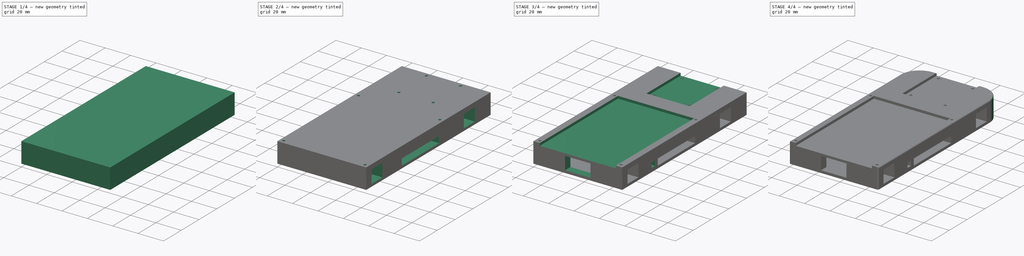
[diagram: build sequence overview — one tinted view per stage of 4, left to right]
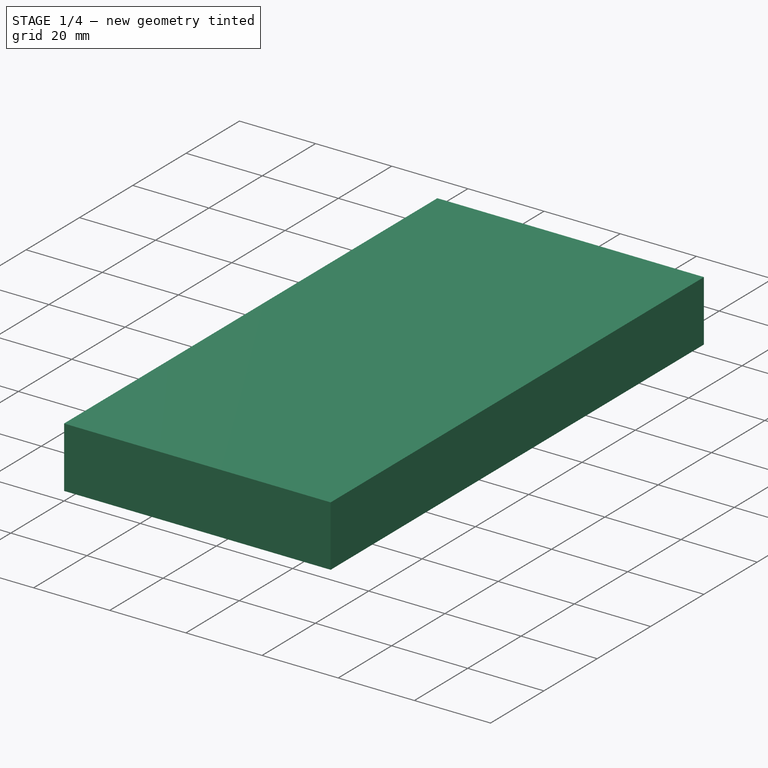
[diagram: stage 1 of 4 — iso view after this stage's code; geometry added in this stage tinted green]
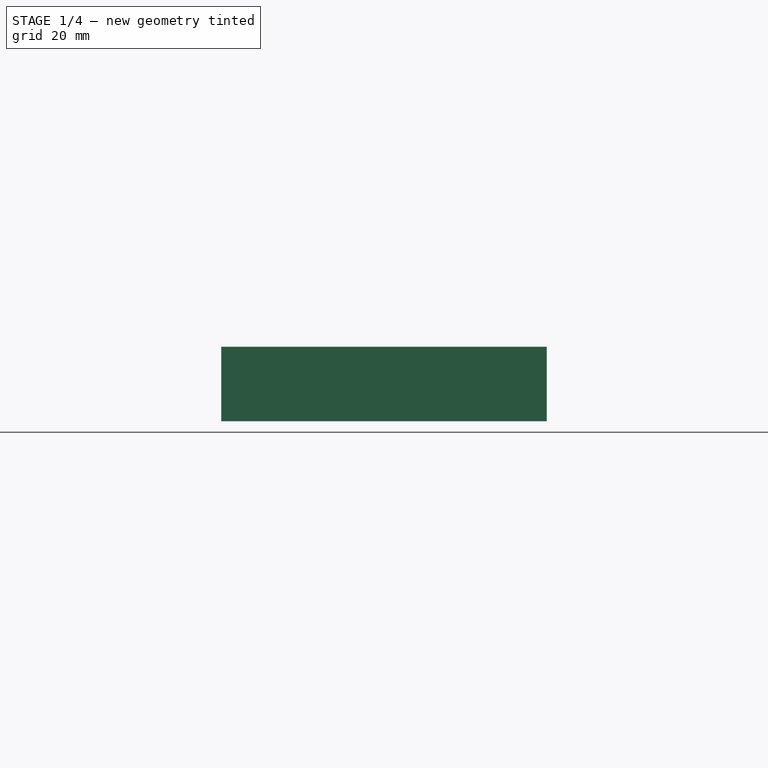
[diagram: stage 1 of 4 — front view after this stage's code; geometry added in this stage tinted green]
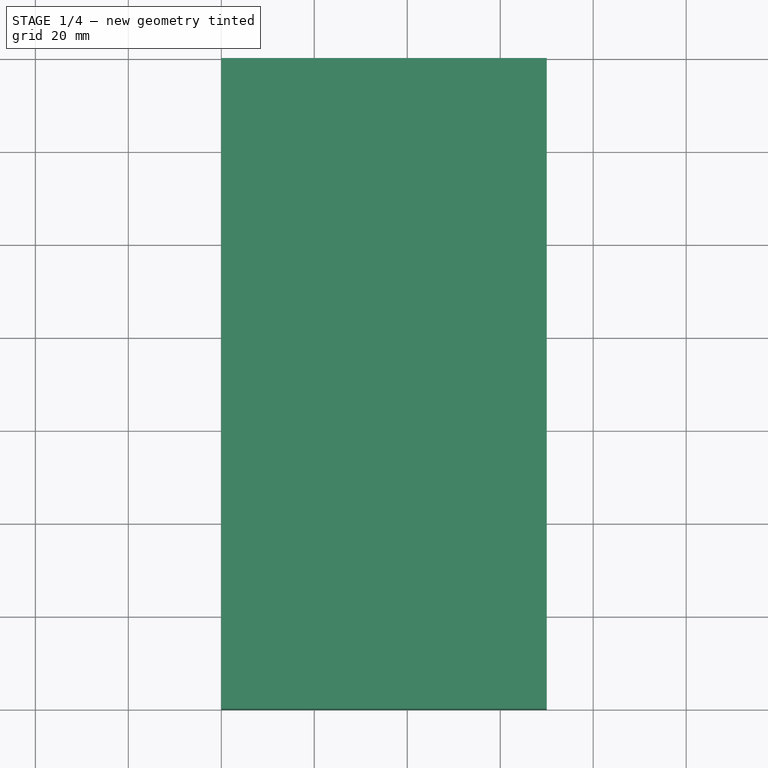
[diagram: stage 1 of 4 — top view after this stage's code; geometry added in this stage tinted green]
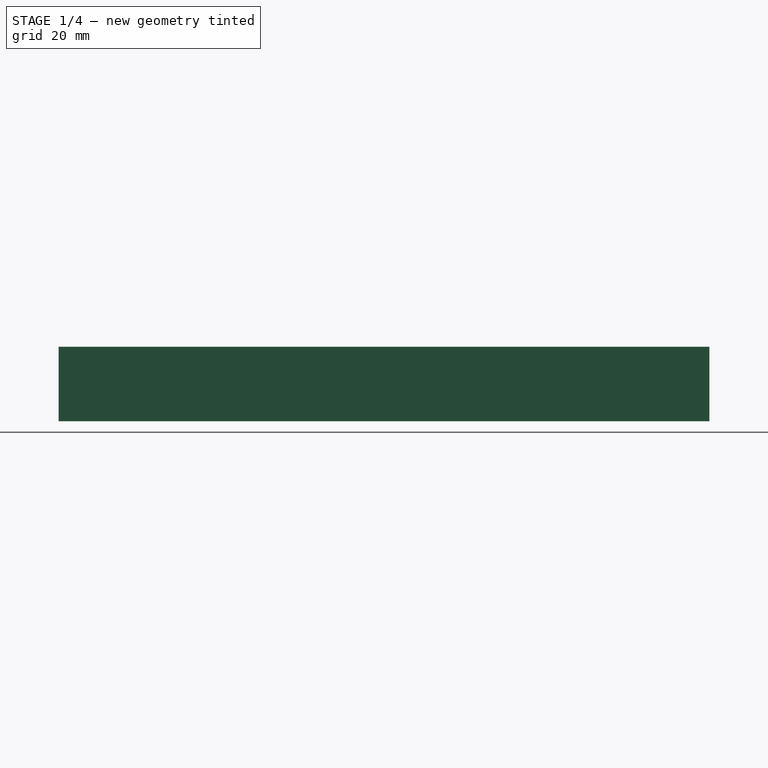
[diagram: stage 1 of 4 — right view after this stage's code; geometry added in this stage tinted green]
FCSTD DOCUMENT  (FreeCAD 0.17R13541 (Git))
Label: NeuroBot
License: All rights reserved
LicenseURL: http://en.wikipedia.org/wiki/All_rights_reserved
objects: Sketcher::SketchObject×5, PartDesign::Pocket×5, PartDesign::Fillet×2, Part::Box×1, PartDesign::FeatureBase×1, PartDesign::Body×1
note: 20 computed .brp shape members not serialized (recipe doc carries the construction recipe); baked Part::Feature solids carry a one-line shape summary decoded from their .brp

FEATURE [Part::Box] Box  label="Kocka"
  AttacherType = Attacher::AttachEngine3D
  Height = 16
  Length = 70
  Width = 140
FEATURE [PartDesign::FeatureBase] BaseFeature
  BaseFeature = -> Box
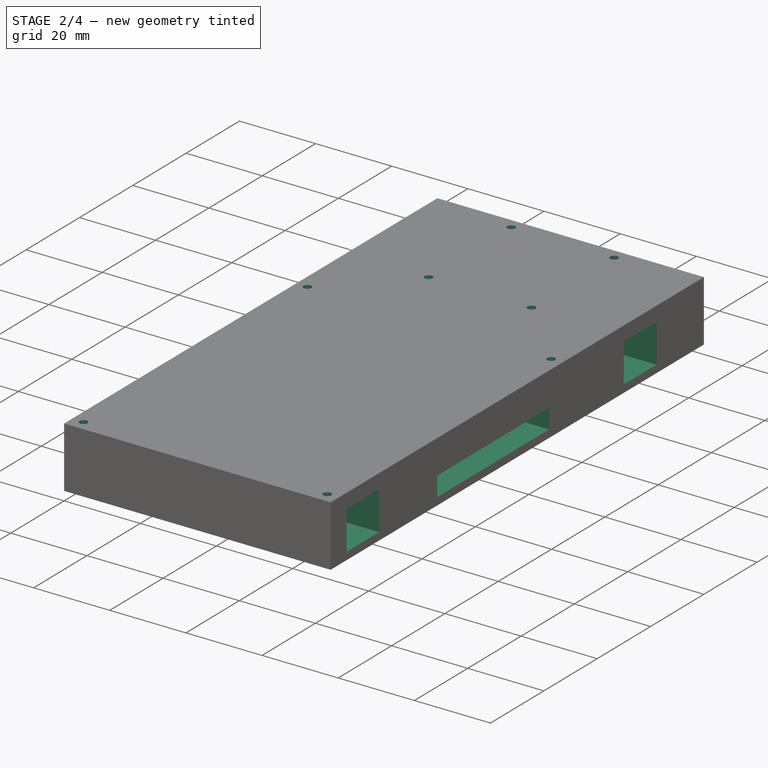
[diagram: stage 2 of 4 — iso view after this stage's code; geometry added in this stage tinted green]
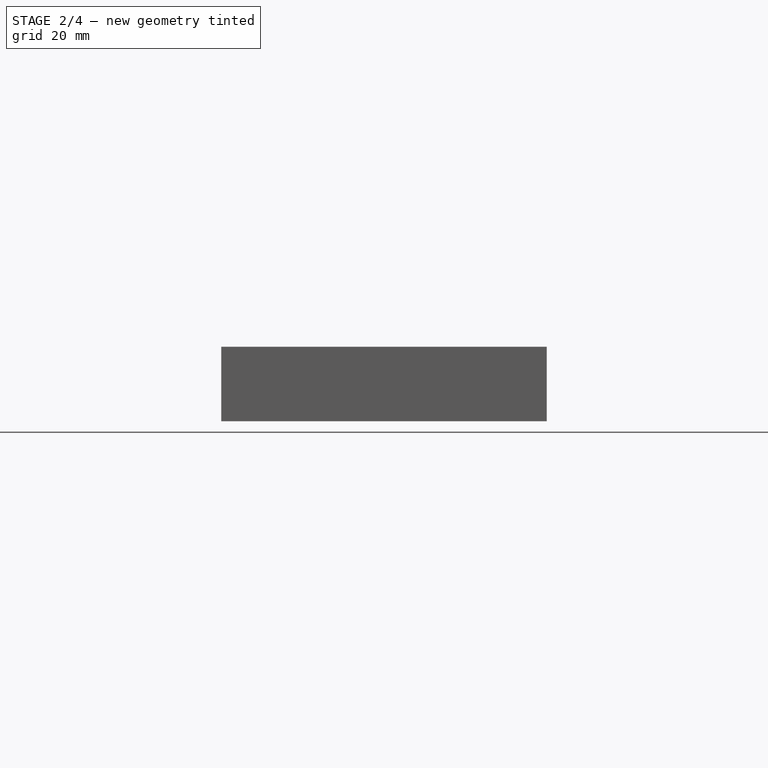
[diagram: stage 2 of 4 — front view after this stage's code; geometry added in this stage tinted green]
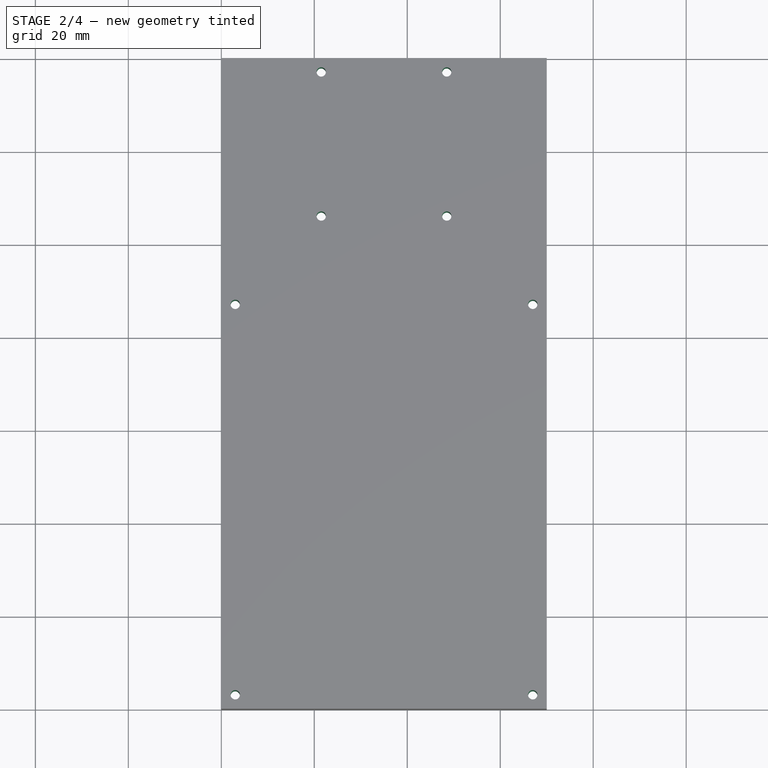
[diagram: stage 2 of 4 — top view after this stage's code; geometry added in this stage tinted green]
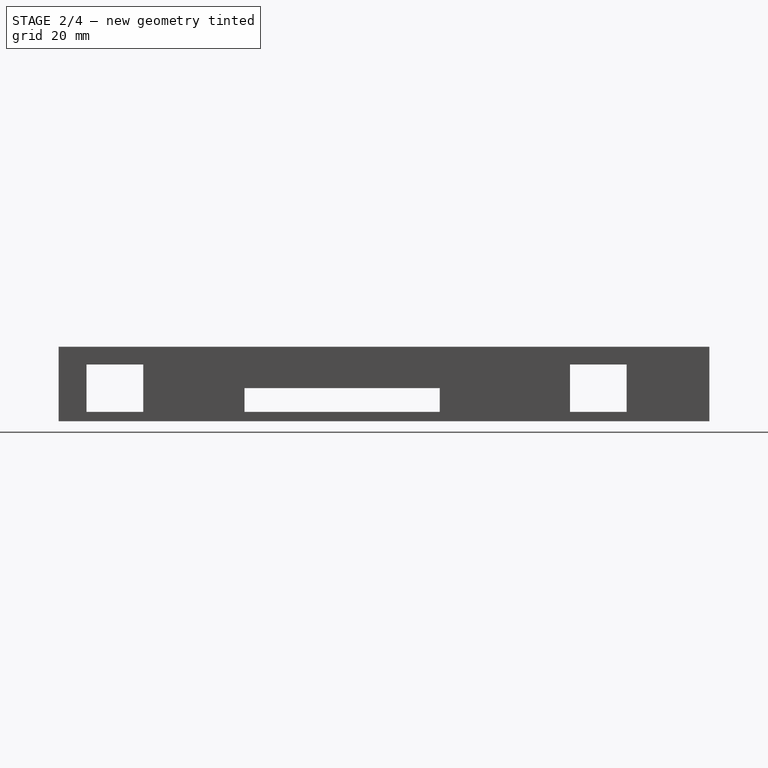
[diagram: stage 2 of 4 — right view after this stage's code; geometry added in this stage tinted green]
FEATURE [Sketcher::SketchObject] Sketch
  MapMode = 5
  Placement = pos=(0,0,16) rot=(0,0,1;0rad)
  Support = -> [BaseFeature]
  sketch-geometry (8):
    g0: Circle CenterX=3 CenterY=3 CenterZ=0 NormalX=0 NormalY=0 NormalZ=1 AngleXU=0 Radius=1
    g1: Circle CenterX=67 CenterY=3 CenterZ=0 NormalX=0 NormalY=0 NormalZ=1 AngleXU=0 Radius=1
    g2: Circle CenterX=3 CenterY=87 CenterZ=0 NormalX=0 NormalY=0 NormalZ=1 AngleXU=0 Radius=1
    g3: Circle CenterX=67 CenterY=87 CenterZ=0 NormalX=0 NormalY=0 NormalZ=1 AngleXU=0 Radius=1
    g4: Circle CenterX=21.5 CenterY=137 CenterZ=0 NormalX=0 NormalY=0 NormalZ=1 AngleXU=0 Radius=1
    g5: Circle CenterX=48.5 CenterY=137 CenterZ=0 NormalX=0 NormalY=0 NormalZ=1 AngleXU=0 Radius=1
    g6: Circle CenterX=21.5 CenterY=106 CenterZ=0 NormalX=0 NormalY=0 NormalZ=1 AngleXU=0 Radius=1
    g7: Circle CenterX=48.5 CenterY=106 CenterZ=0 NormalX=0 NormalY=0 NormalZ=1 AngleXU=0 Radius=1
  constraints (24):
    c: Radius(g0) = 1
    c: DistanceY(g-1,g0) = 3
    c: DistanceX(g-1,g0) = 3
    c: Radius(g1) = 1
    c: DistanceY(g-1,g1) = 3
    c: DistanceX(g0,g1) = 64
    c: Radius(g3) = 1
    c: Radius(g2) = 1
    c: DistanceX(g2,g3) = 64
    c: DistanceX(g-1,g2) = 3
    c: DistanceY(g0,g2) = 84
    c: DistanceY(g1,g3) = 84
    c: Radius(g4) = 1
    c: Radius(g5) = 1
    c: Radius(g7) = 1
    c: Radius(g6) = 1
    c: DistanceX(g-1,g4) = 21.5
    c: DistanceX(g4,g5) = 27
    c: DistanceX(g6,g7) = 27
    c: DistanceX(g4,g7) = 27
    c: DistanceY(g7,g5) = 31
    c: DistanceY(g6,g4) = 31
    c: DistanceY(g-1,g4) = 137
    c: DistanceY(g-1,g5) = 137
FEATURE [PartDesign::Pocket] Pocket
  BaseFeature = -> BaseFeature
  Length = 20
  Length2 = 100
  Profile = -> Sketch
  Type = 0
FEATURE [Sketcher::SketchObject] Sketch001
  MapMode = 5
  Placement = pos=(0,0,0) rot=(0.57735,0.57735,0.57735;2.0944rad)
  Support = -> [YZ_Plane]
  sketch-geometry (12):
    g0: LineSegment StartX=6 StartY=12.2 StartZ=0 EndX=18.2 EndY=12.2 EndZ=0
    g1: LineSegment StartX=18.2 StartY=12.2 StartZ=0 EndX=18.2 EndY=2 EndZ=0
    g2: LineSegment StartX=18.2 StartY=2 StartZ=0 EndX=6 EndY=2 EndZ=0
    g3: LineSegment StartX=6 StartY=2 StartZ=0 EndX=6 EndY=12.2 EndZ=0
    g4: LineSegment StartX=110 StartY=12.2 StartZ=0 EndX=122.2 EndY=12.2 EndZ=0
    g5: LineSegment StartX=122.2 StartY=12.2 StartZ=0 EndX=122.2 EndY=2 EndZ=0
    g6: LineSegment StartX=122.2 StartY=2 StartZ=0 EndX=110 EndY=2 EndZ=0
    g7: LineSegment StartX=110 StartY=2 StartZ=0 EndX=110 EndY=12.2 EndZ=0
    g8: LineSegment StartX=40 StartY=7.1 StartZ=0 EndX=82 EndY=7.1 EndZ=0
    g9: LineSegment StartX=82 StartY=7.1 StartZ=0 EndX=82 EndY=2 EndZ=0
    g10: LineSegment StartX=82 StartY=2 StartZ=0 EndX=40 EndY=2 EndZ=0
    g11: LineSegment StartX=40 StartY=2 StartZ=0 EndX=40 EndY=7.1 EndZ=0
  constraints (36):
    c: Coincident(g0,g1)
    c: Coincident(g1,g2)
    c: Coincident(g2,g3)
    c: Coincident(g3,g0)
    c: Horizontal(g0)
    c: Horizontal(g2)
    c: Vertical(g1)
    c: Vertical(g3)
    c: Coincident(g4,g5)
    c: Coincident(g5,g6)
    c: Coincident(g6,g7)
    c: Coincident(g7,g4)
    c: Horizontal(g4)
    c: Horizontal(g6)
    c: Vertical(g5)
    c: Vertical(g7)
    c: DistanceY(g1,g0) = 10.2
    c: DistanceY(g5,g4) = 10.2
    c: DistanceX(g4,g4) = 12.2
    c: DistanceX(g0,g0) = 12.2
    c: DistanceX(g-1,g0) = 6
    c: DistanceX(g-1,g6) = 110
    c: DistanceY(g-1,g6) = 2
    c: DistanceY(g-1,g2) = 2
    c: Coincident(g8,g9)
    c: Coincident(g9,g10)
    c: Coincident(g10,g11)
    c: Coincident(g11,g8)
    c: Horizontal(g8)
    c: Horizontal(g10)
    c: Vertical(g9)
    c: Vertical(g11)
    c: DistanceX(g8,g8) = 42
    c: DistanceY(g9,g8) = 5.1
    c: DistanceX(g-1,g10) = 40
    c: DistanceY(g-1,g10) = 2
FEATURE [PartDesign::Pocket] Pocket001
  BaseFeature = -> Pocket
  Length = 75
  Length2 = 100
  Profile = -> Sketch001
  Reversed = true
  Type = 0
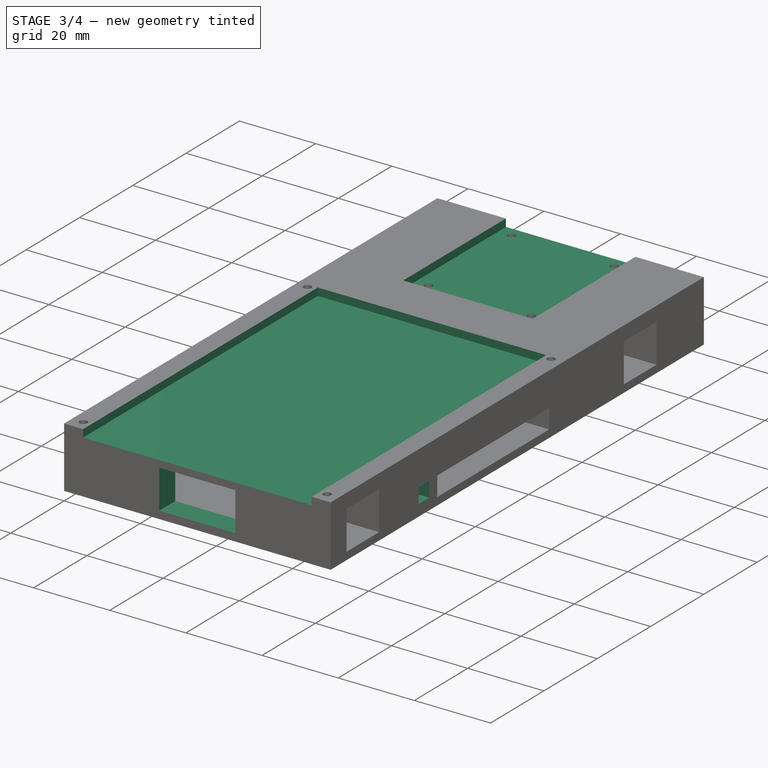
[diagram: stage 3 of 4 — iso view after this stage's code; geometry added in this stage tinted green]
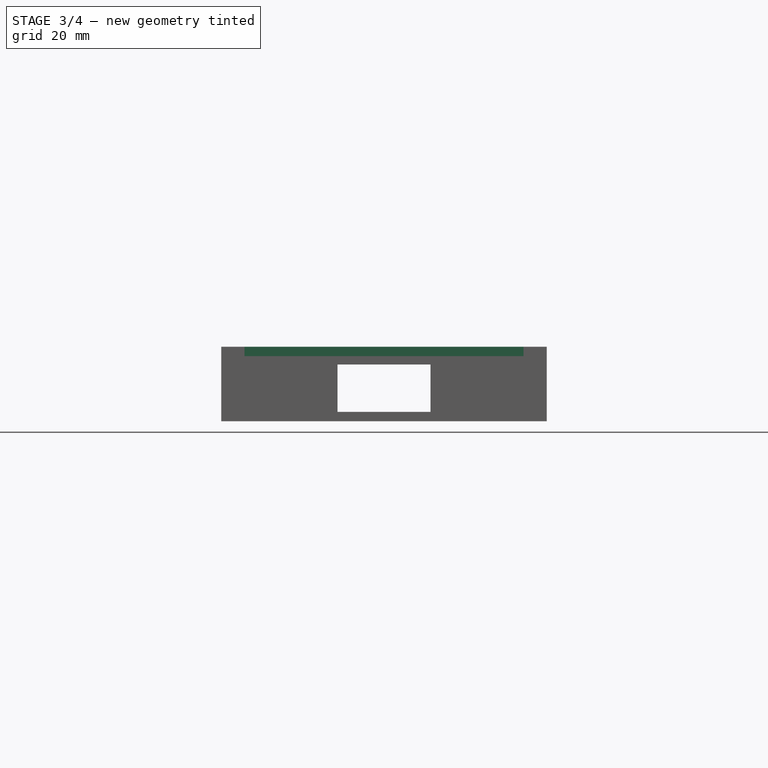
[diagram: stage 3 of 4 — front view after this stage's code; geometry added in this stage tinted green]
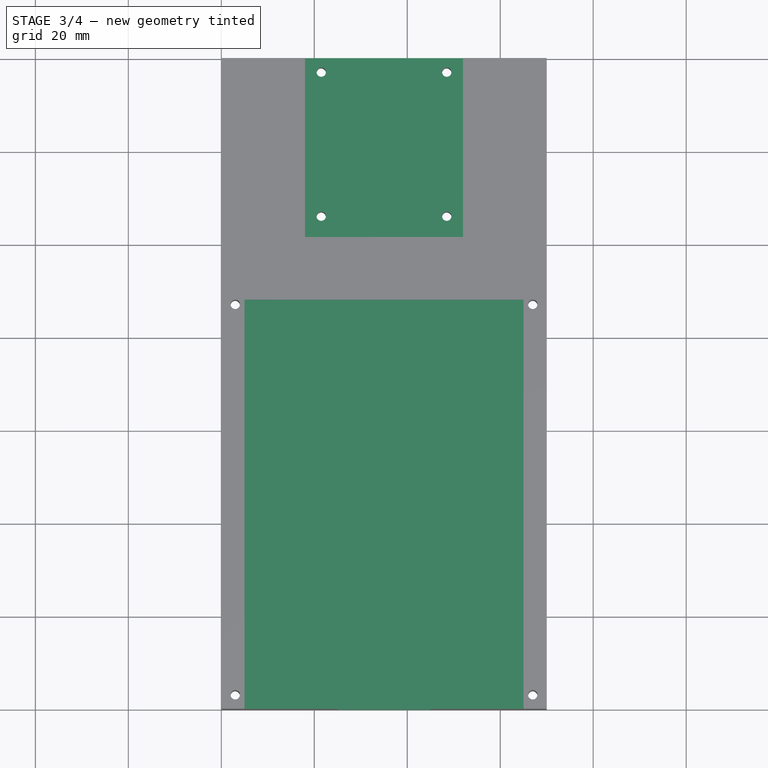
[diagram: stage 3 of 4 — top view after this stage's code; geometry added in this stage tinted green]
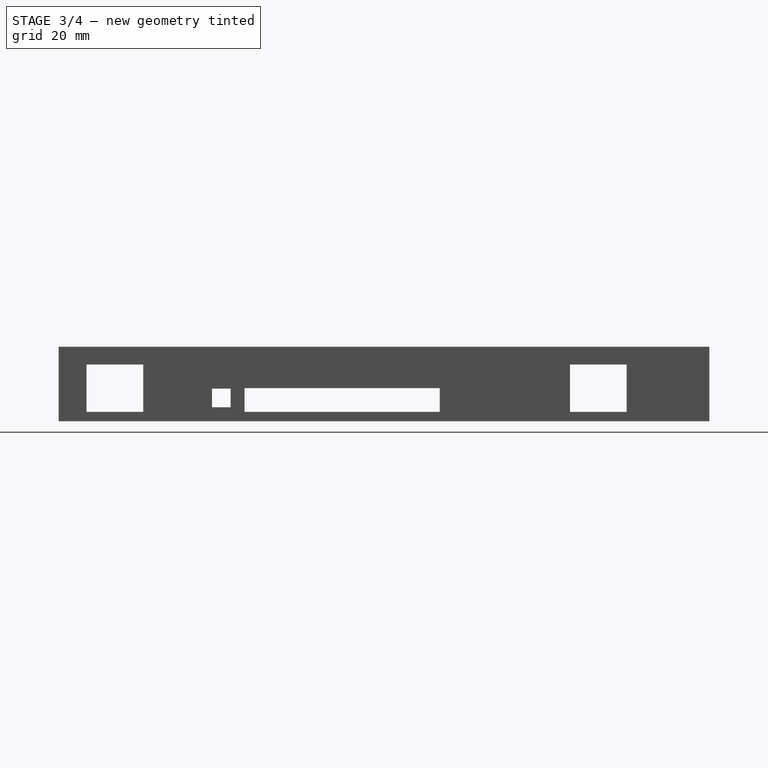
[diagram: stage 3 of 4 — right view after this stage's code; geometry added in this stage tinted green]
FEATURE [Sketcher::SketchObject] Sketch002
  MapMode = 5
  Placement = pos=(0,0,0) rot=(1,0,0;1.5708rad)
  Support = -> [XZ_Plane]
  sketch-geometry (4):
    g0: LineSegment StartX=25 StartY=12.2 StartZ=0 EndX=45 EndY=12.2 EndZ=0
    g1: LineSegment StartX=45 StartY=12.2 StartZ=0 EndX=45 EndY=2 EndZ=0
    g2: LineSegment StartX=45 StartY=2 StartZ=0 EndX=25 EndY=2 EndZ=0
    g3: LineSegment StartX=25 StartY=2 StartZ=0 EndX=25 EndY=12.2 EndZ=0
  constraints (12):
    c: Coincident(g0,g1)
    c: Coincident(g1,g2)
    c: Coincident(g2,g3)
    c: Coincident(g3,g0)
    c: Horizontal(g0)
    c: Horizontal(g2)
    c: Vertical(g1)
    c: Vertical(g3)
    c: DistanceX(g0,g0) = 20
    c: DistanceY(g2,g0) = 10.2
    c: DistanceY(g-1,g2) = 2
    c: DistanceX(g-1,g0) = 25
FEATURE [PartDesign::Pocket] Pocket002
  BaseFeature = -> Pocket001
  Length = 140
  Length2 = 100
  Profile = -> Sketch002
  Type = 0
FEATURE [Sketcher::SketchObject] Sketch003
  MapMode = 5
  Placement = pos=(0,0,16) rot=(0,0,1;0rad)
  Support = -> [Pocket002]
  sketch-geometry (8):
    g0: LineSegment StartX=18 StartY=140 StartZ=0 EndX=52 EndY=140 EndZ=0
    g1: LineSegment StartX=52 StartY=140 StartZ=0 EndX=52 EndY=101.5 EndZ=0
    g2: LineSegment StartX=52 StartY=101.5 StartZ=0 EndX=18 EndY=101.5 EndZ=0
    g3: LineSegment StartX=18 StartY=101.5 StartZ=0 EndX=18 EndY=140 EndZ=0
    g4: LineSegment StartX=5 StartY=88 StartZ=0 EndX=65 EndY=88 EndZ=0
    g5: LineSegment StartX=65 StartY=88 StartZ=0 EndX=65 EndY=-2 EndZ=0
    g6: LineSegment StartX=65 StartY=-2 StartZ=0 EndX=5 EndY=-2 EndZ=0
    g7: LineSegment StartX=5 StartY=-2 StartZ=0 EndX=5 EndY=88 EndZ=0
  constraints (24):
    c: Coincident(g0,g1)
    c: Coincident(g1,g2)
    c: Coincident(g2,g3)
    c: Coincident(g3,g0)
    c: Horizontal(g0)
    c: Horizontal(g2)
    c: Vertical(g1)
    c: Vertical(g3)
    c: DistanceX(g0,g0) = 34
    c: DistanceY(g1,g0) = 38.5
    c: DistanceY(g-1,g0) = 140
    c: DistanceX(g-1,g0) = 18
    c: Coincident(g4,g5)
    c: Coincident(g5,g6)
    c: Coincident(g6,g7)
    c: Coincident(g7,g4)
    c: Horizontal(g4)
    c: Horizontal(g6)
    c: Vertical(g5)
    c: Vertical(g7)
    c: DistanceX(g4,g4) = 60
    c: DistanceY(g5,g4) = 90
    c: DistanceX(g-1,g4) = 5
    c: DistanceY(g-1,g4) = 88
FEATURE [PartDesign::Pocket] Pocket003
  BaseFeature = -> Pocket002
  Length = 2
  Length2 = 100
  Profile = -> Sketch003
  Type = 0
FEATURE [Sketcher::SketchObject] Sketch004
  MapMode = 5
  Placement = pos=(70,0,0) rot=(0.57735,0.57735,0.57735;2.0944rad)
  Support = -> [Pocket003]
  sketch-geometry (4):
    g0: LineSegment StartX=33 StartY=7 StartZ=0 EndX=37 EndY=7 EndZ=0
    g1: LineSegment StartX=37 StartY=7 StartZ=0 EndX=37 EndY=3 EndZ=0
    g2: LineSegment StartX=37 StartY=3 StartZ=0 EndX=33 EndY=3 EndZ=0
    g3: LineSegment StartX=33 StartY=3 StartZ=0 EndX=33 EndY=7 EndZ=0
  constraints (12):
    c: Coincident(g0,g1)
    c: Coincident(g1,g2)
    c: Coincident(g2,g3)
    c: Coincident(g3,g0)
    c: Horizontal(g0)
    c: Horizontal(g2)
    c: Vertical(g1)
    c: Vertical(g3)
    c: DistanceX(g0,g0) = 4
    c: DistanceY(g1,g1) = 4
    c: DistanceY(g-1,g2) = 3
    c: DistanceX(g-1,g2) = 33
FEATURE [PartDesign::Pocket] Pocket004
  BaseFeature = -> Pocket003
  Length = 80
  Length2 = 100
  Profile = -> Sketch004
  Type = 0
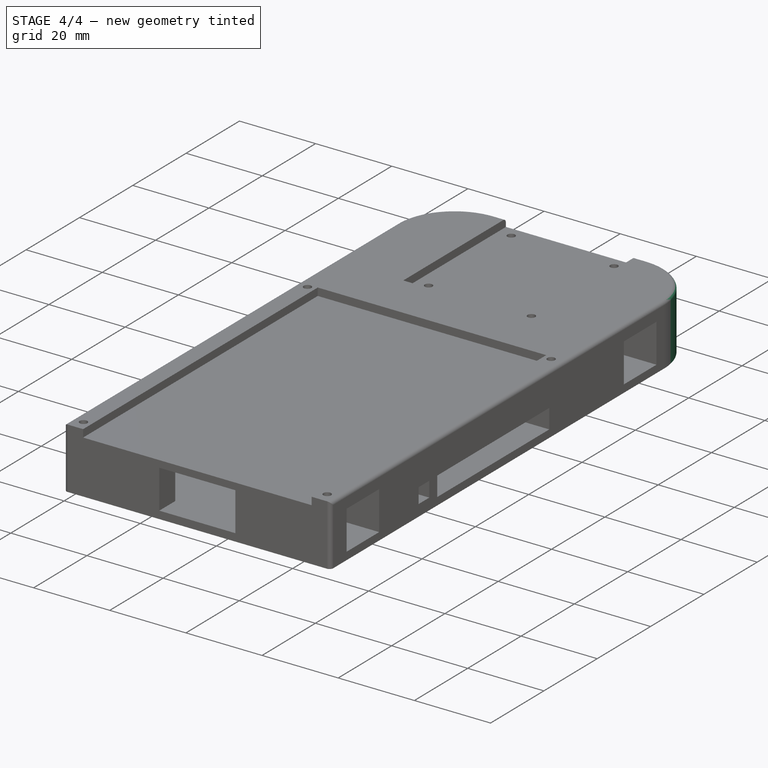
[diagram: stage 4 of 4 — iso view after this stage's code; geometry added in this stage tinted green]
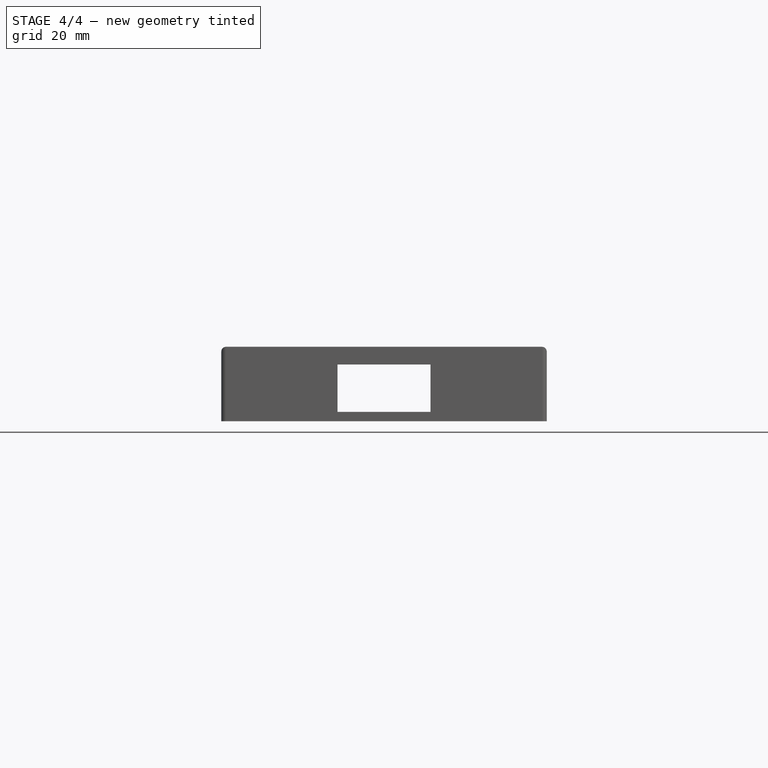
[diagram: stage 4 of 4 — front view after this stage's code; geometry added in this stage tinted green]
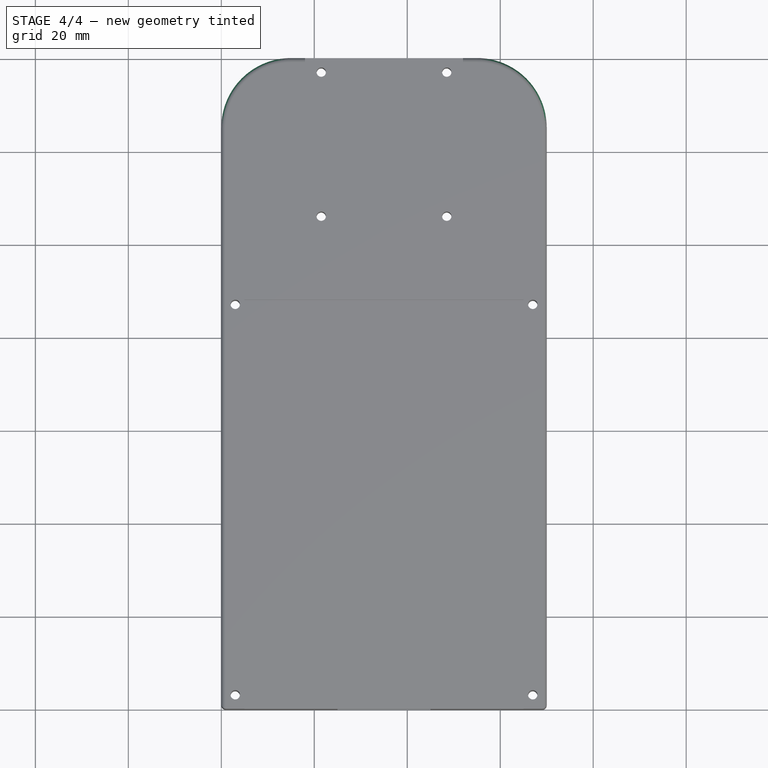
[diagram: stage 4 of 4 — top view after this stage's code; geometry added in this stage tinted green]
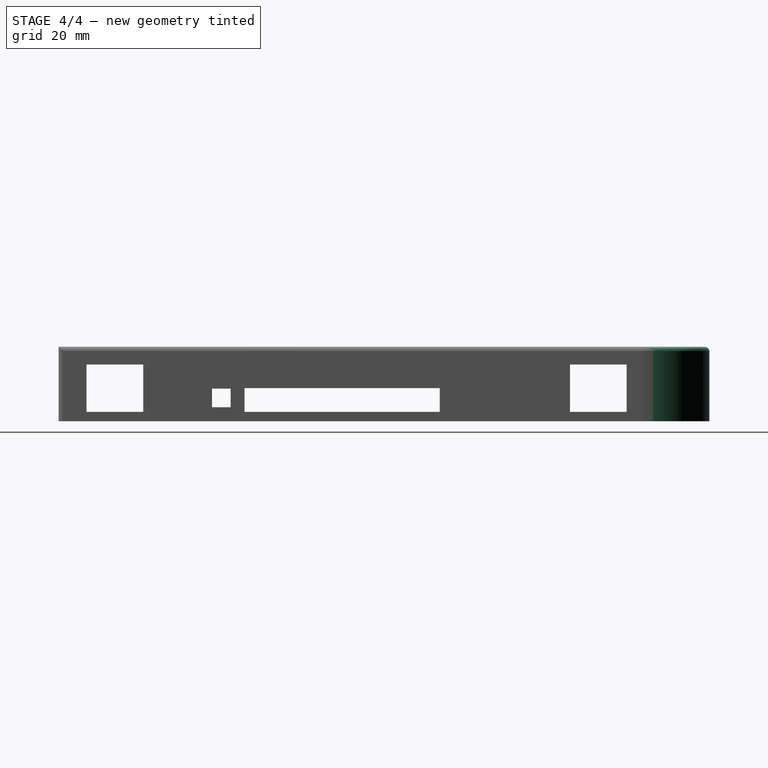
[diagram: stage 4 of 4 — right view after this stage's code; geometry added in this stage tinted green]
FEATURE [PartDesign::Fillet] Fillet
  Base = -> Pocket004 [Edge4,Edge55]
  BaseFeature = -> Pocket004
  Radius = 15
FEATURE [PartDesign::Fillet] Fillet001
  Base = -> Fillet [Edge40,Edge3,Edge32,Edge1,Edge30,Edge28,Edge21,Edge22]
  BaseFeature = -> Fillet
  Radius = 1
FEATURE [PartDesign::Body] Body
  BaseFeature = -> Box
  Group = -> [BaseFeature,Sketch,Pocket,Sketch001,Pocket001,Sketch002,Pocket002,Sketch003,Pocket003,Sketch004,Pocket004,Fillet,Fillet001]
  Origin = -> Origin
  Tip = -> Fillet001
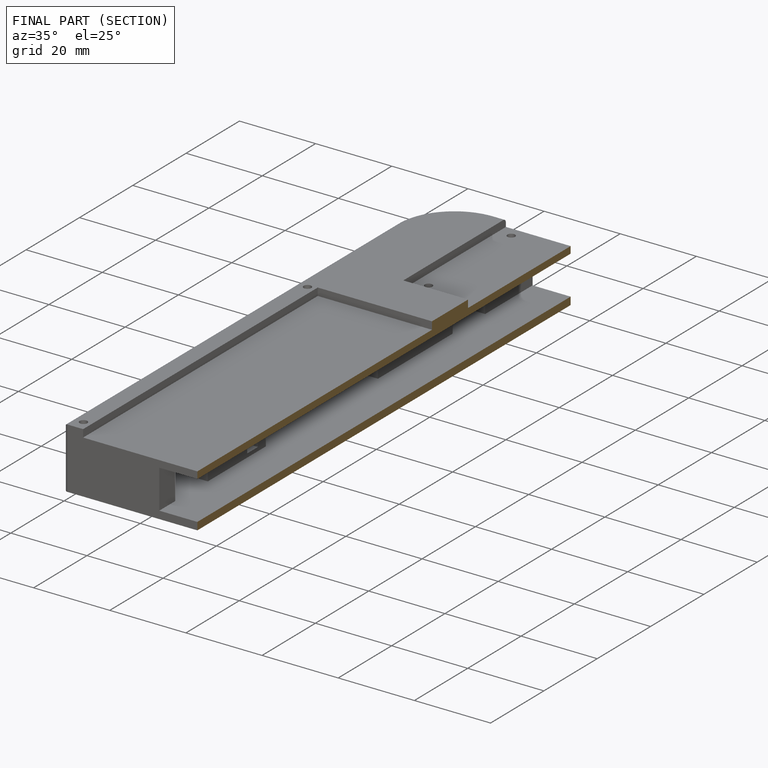
[diagram: finished part — half-section view (interior)]
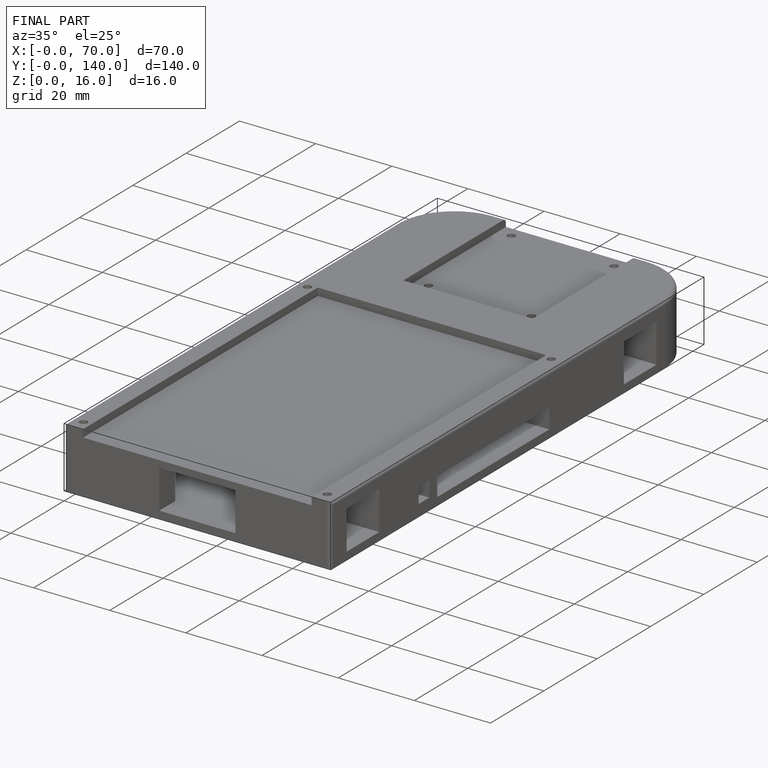
[diagram: finished part — iso view with bounding-box wireframe]
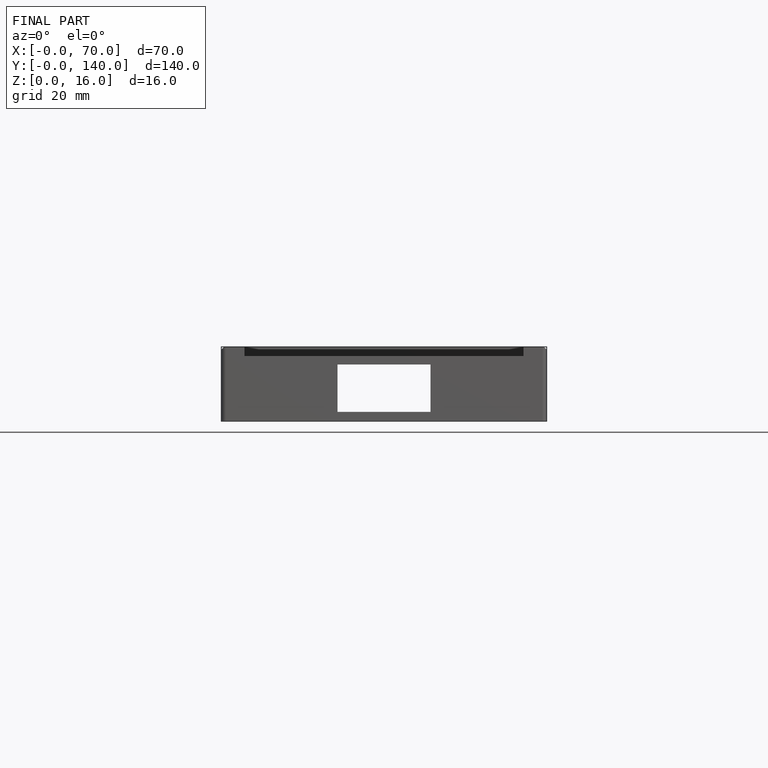
[diagram: finished part — front view with bounding-box wireframe]
